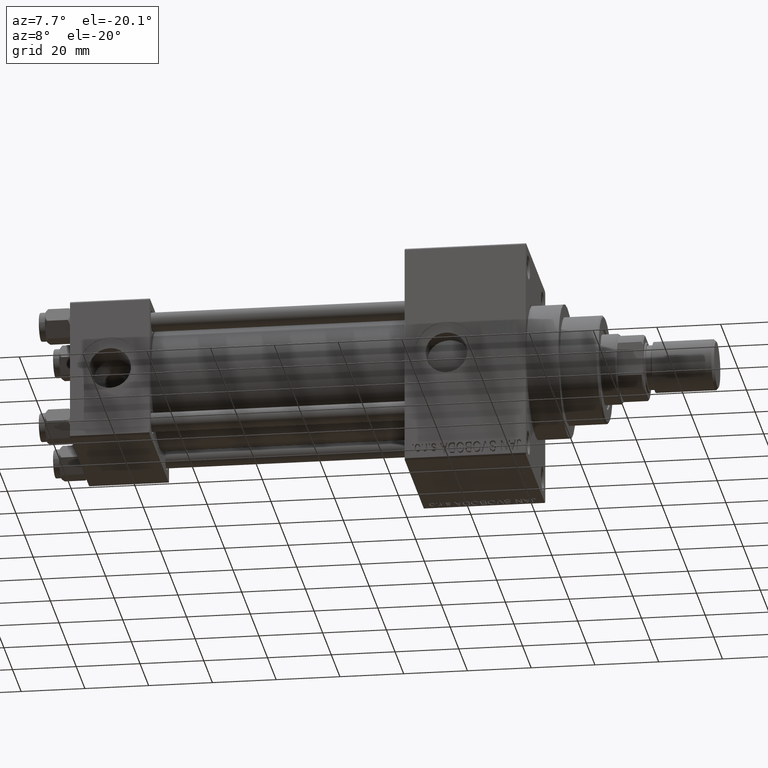
[diagram: clean part render]
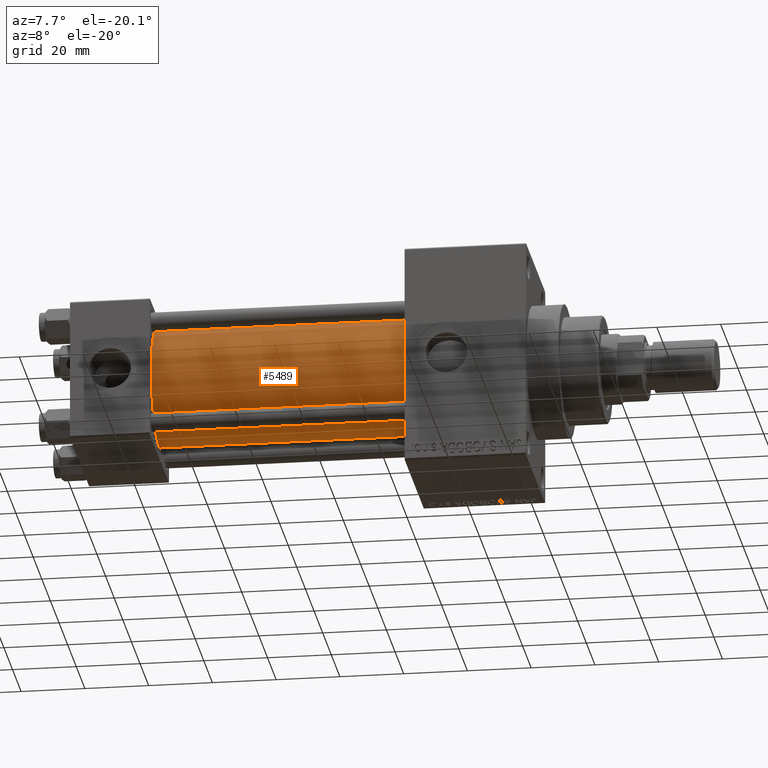
[diagram: same view with one face highlighted and labeled with its STEP entity id]
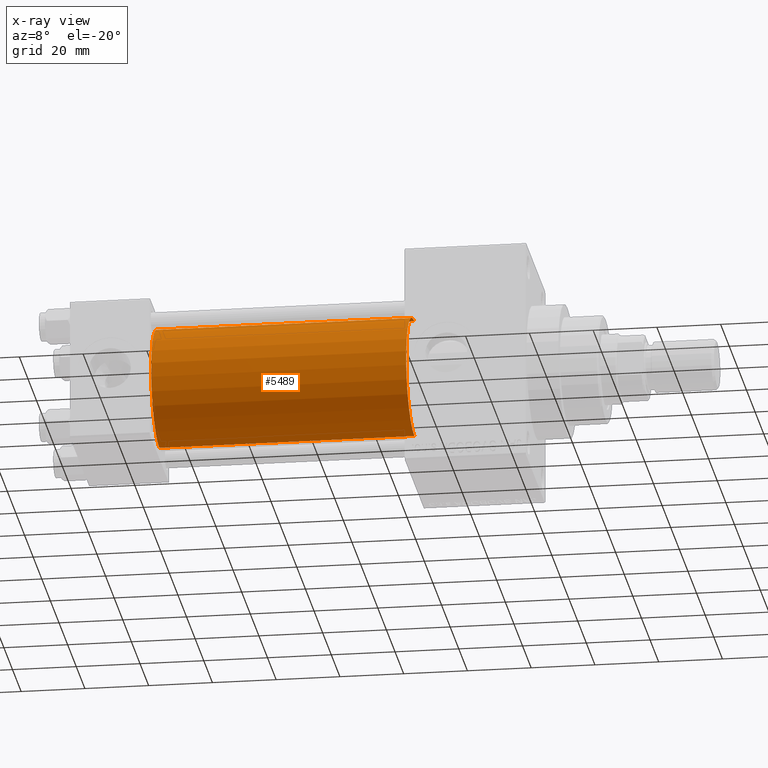
[diagram: x-ray of the same camera — body ghosted, the highlighted face saturated]
A machine part, auxiliary view. The second image highlights one B-rep face of the part: STEP entity #5489.
The next image is the same camera in x-ray: the body ghosted, the highlighted face saturated — about 0% of this face is hidden behind the body in this view.
In plain terms, the highlighted cylindrical surface (partial cylindrical patch) has radius 19 mm, axis along (-1, -0, -0).
Its self-contained STEP definition (entity closure, byte-faithful):
#697 = VECTOR ( 'NONE', #23755, 1000.000000000000000 ) ;
#1076 = CARTESIAN_POINT ( 'NONE',  ( 24.99999999999999289, -2.752562955852396712E-16, -19.00000000000000000 ) ) ;
#1366 = EDGE_CURVE ( 'NONE', #47399, #5100, #2310, .T. ) ;
#1754 = FACE_OUTER_BOUND ( 'NONE', #28942, .T. ) ;
#2310 = CIRCLE ( 'NONE', #23147, 19.00000000000000000 ) ;
#4595 = EDGE_CURVE ( 'NONE', #42979, #47399, #28253, .T. ) ;
#5100 = VERTEX_POINT ( 'NONE', #1076 ) ;
#5489 = ADVANCED_FACE ( 'NONE', ( #1754 ), #17545, .T. ) ;
#7388 = AXIS2_PLACEMENT_3D ( 'NONE', #33095, #17315, #13309 ) ;
#8775 = DIRECTION ( 'NONE',  ( -1.000000000000000000, -0.000000000000000000, -0.000000000000000000 ) ) ;
#9559 = ORIENTED_EDGE ( 'NONE', *, *, #13095, .F. ) ;
#9844 = ORIENTED_EDGE ( 'NONE', *, *, #4595, .T. ) ;
#10331 = ORIENTED_EDGE ( 'NONE', *, *, #22977, .F. ) ;
#12854 = CARTESIAN_POINT ( 'NONE',  ( 105.0000000000000142, -2.752562955852396712E-16, -19.00000000000000000 ) ) ;
#12967 = CARTESIAN_POINT ( 'NONE',  ( 105.0000000000000142, -2.602085213965210642E-15, 19.00000000000000000 ) ) ;
#13082 = CARTESIAN_POINT ( 'NONE',  ( 24.99999999999999289, -2.602085213965210642E-15, 0.000000000000000000 ) ) ;
#13095 = EDGE_CURVE ( 'NONE', #42979, #26992, #22606, .T. ) ;
#13309 = DIRECTION ( 'NONE',  ( 0.000000000000000000, 0.000000000000000000, -1.000000000000000000 ) ) ;
#17315 = DIRECTION ( 'NONE',  ( 1.000000000000000000, 0.000000000000000000, 0.000000000000000000 ) ) ;
#17545 = CYLINDRICAL_SURFACE ( 'NONE', #29546, 19.00000000000000000 ) ;
#20314 = DIRECTION ( 'NONE',  ( 0.000000000000000000, 0.000000000000000000, 1.000000000000000000 ) ) ;
#22451 = DIRECTION ( 'NONE',  ( -1.000000000000000000, -0.000000000000000000, -0.000000000000000000 ) ) ;
#22606 = CIRCLE ( 'NONE', #7388, 19.00000000000000000 ) ;
#22977 = EDGE_CURVE ( 'NONE', #26992, #5100, #37711, .T. ) ;
#23147 = AXIS2_PLACEMENT_3D ( 'NONE', #13082, #25609, #35868 ) ;
#23755 = DIRECTION ( 'NONE',  ( -1.000000000000000000, -0.000000000000000000, -0.000000000000000000 ) ) ;
#25609 = DIRECTION ( 'NONE',  ( 1.000000000000000000, -0.000000000000000000, 0.000000000000000000 ) ) ;
#26712 = CARTESIAN_POINT ( 'NONE',  ( 24.99999999999999289, -2.602085213965210642E-15, 19.00000000000000000 ) ) ;
#26992 = VERTEX_POINT ( 'NONE', #12854 ) ;
#28253 = LINE ( 'NONE', #12967, #697 ) ;
#28942 = EDGE_LOOP ( 'NONE', ( #10331, #9559, #9844, #30420 ) ) ;
#29546 = AXIS2_PLACEMENT_3D ( 'NONE', #32824, #8775, #20314 ) ;
#30420 = ORIENTED_EDGE ( 'NONE', *, *, #1366, .T. ) ;
#32824 = CARTESIAN_POINT ( 'NONE',  ( 105.0000000000000142, -2.602085213965210642E-15, 0.000000000000000000 ) ) ;
#33095 = CARTESIAN_POINT ( 'NONE',  ( 105.0000000000000142, -2.602085213965210642E-15, 0.000000000000000000 ) ) ;
#35868 = DIRECTION ( 'NONE',  ( 0.000000000000000000, 0.000000000000000000, 1.000000000000000000 ) ) ;
#37711 = LINE ( 'NONE', #46462, #46798 ) ;
#42979 = VERTEX_POINT ( 'NONE', #43927 ) ;
#43927 = CARTESIAN_POINT ( 'NONE',  ( 105.0000000000000142, -2.602085213965210642E-15, 19.00000000000000000 ) ) ;
#46462 = CARTESIAN_POINT ( 'NONE',  ( 105.0000000000000142, -2.752562955852396712E-16, -19.00000000000000000 ) ) ;
#46798 = VECTOR ( 'NONE', #22451, 1000.000000000000000 ) ;
#47399 = VERTEX_POINT ( 'NONE', #26712 ) ;